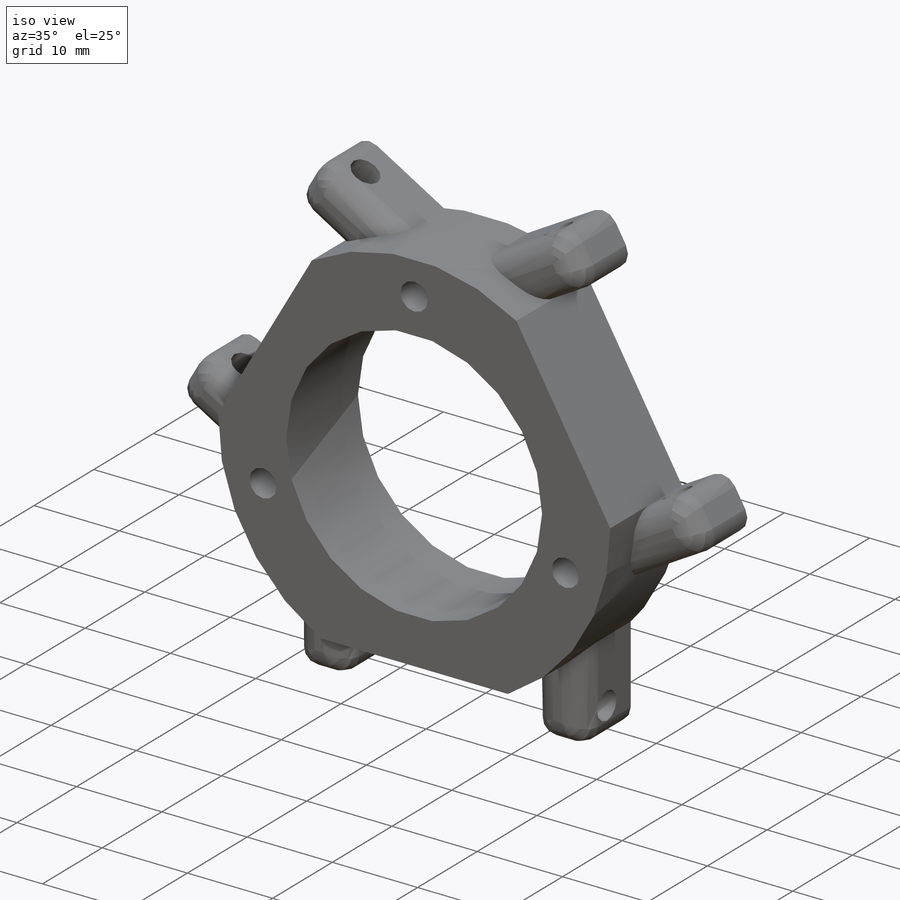
[diagram: iso view]
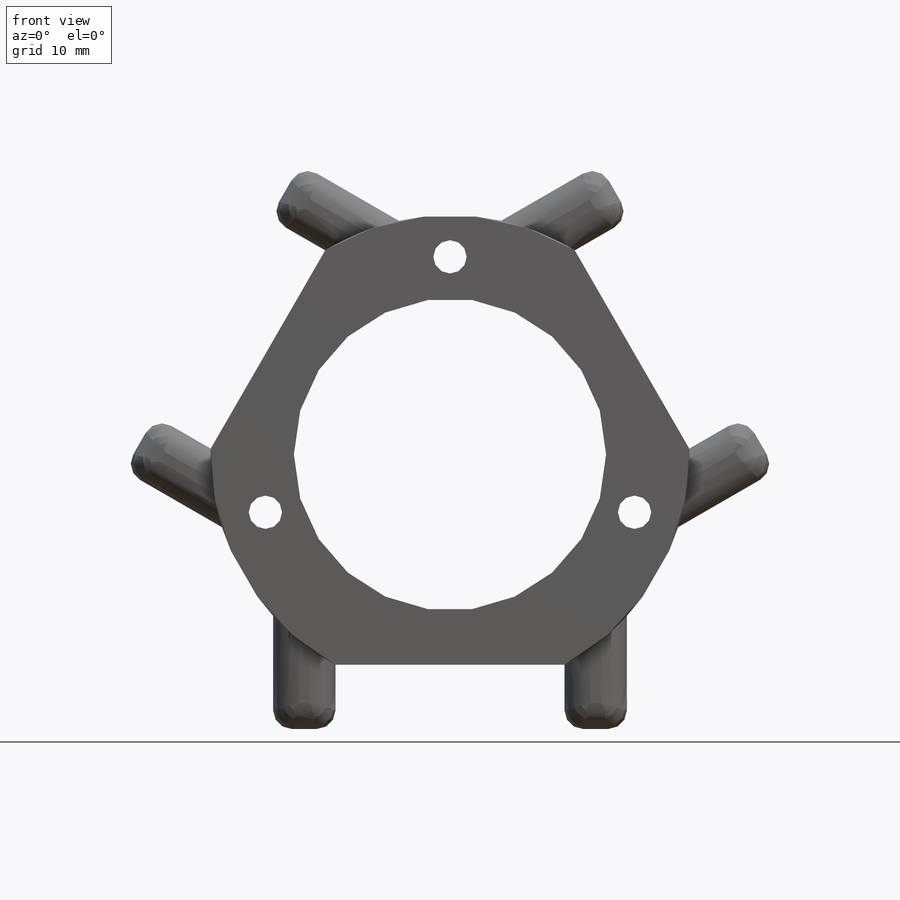
[diagram: front view]
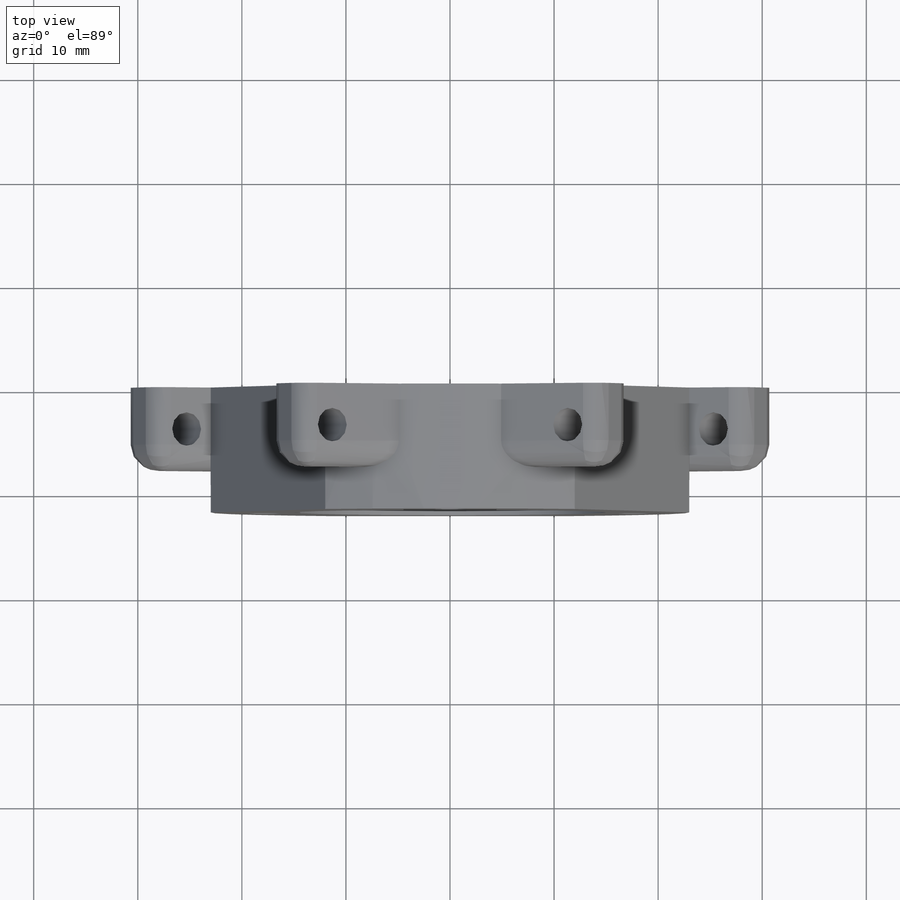
[diagram: top view]
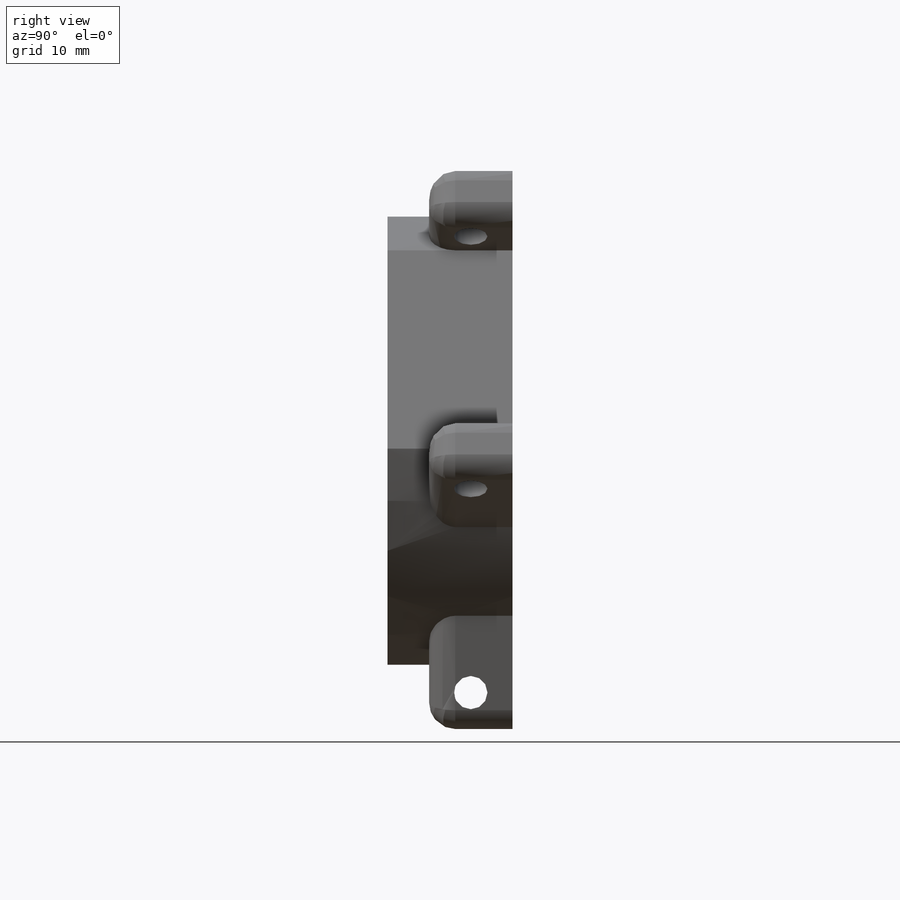
[diagram: right view]
SOLIDWORKS PART (.sldprt)
format: sldprt  version: not decoded by parser v0  size: 399,360 bytes
history: native  units: mm
features: sketch x6, cut_extrude x4, pattern_circular x3, extrude x2, fillet x2, material x1 (+11 scaffold rows collapsed)
feature tree (29):
  scaffold x11  (default folders/planes/origin — collapsed)
  material  "Material <not specified>"
  sketch  "Sketch1"  dims[D1=30.0mm D2=8.0mm]
  extrude  "Boss-Extrude1"  Depth=12mm
  sketch  "Sketch3"  dims[D1=6.0mm D2=17.0mm D3=2.5mm D4=5.0mm]
  extrude  "Boss-Joint Arm"  Depth=8mm
  sketch  "Sketch5"  dims[D1=3.2mm D2=3.5mm]
  cut_extrude  "Cut-Joint Screw Hole"  [1 undecoded]
  fillet  "Fillet3"  Radius=1.8mm
  fillet  "Fillet5"  Radius=2.5mm
  pattern_circular  "CirPattern2"  Count=3 Angle=360deg
  sketch  "Sketch2"  dims[D1=3.2mm]
  cut_extrude  "Cut-Circle Screw Hole"  [1 undecoded]
  pattern_circular  "CirPattern1"  Count=3 Angle=360deg
  sketch  "Sketch6"
  cut_extrude  "Cut-Extrude1"  [1 undecoded]
  pattern_circular  "CirPattern3"  Count=3 Angle=360deg
  sketch  "Sketch7"  dims[D1=~1.768016mm]
  cut_extrude  "Cut-Extrude2"  [1 undecoded]
decode coverage: 12 of 17 modeling features carry decoded parameters
note: ~ marks probable driven/reference dimensions
note: 4 parameter values undecoded
summary: no parameter record found for 4 features
note: suppression state not decoded; provenance and decode notes live in map.json
